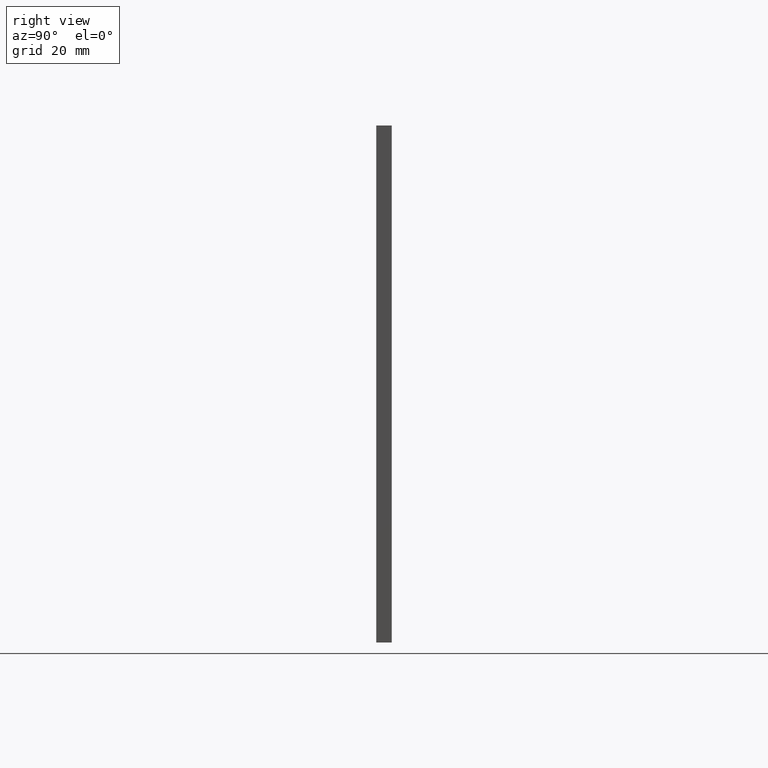
[diagram: clean part render]
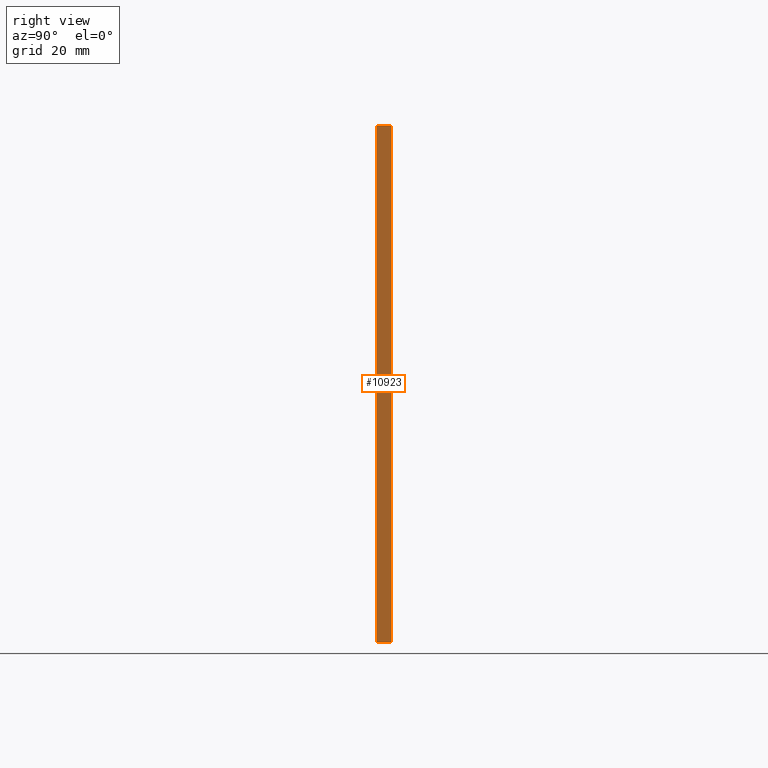
[diagram: same view with one face highlighted and labeled with its STEP entity id]
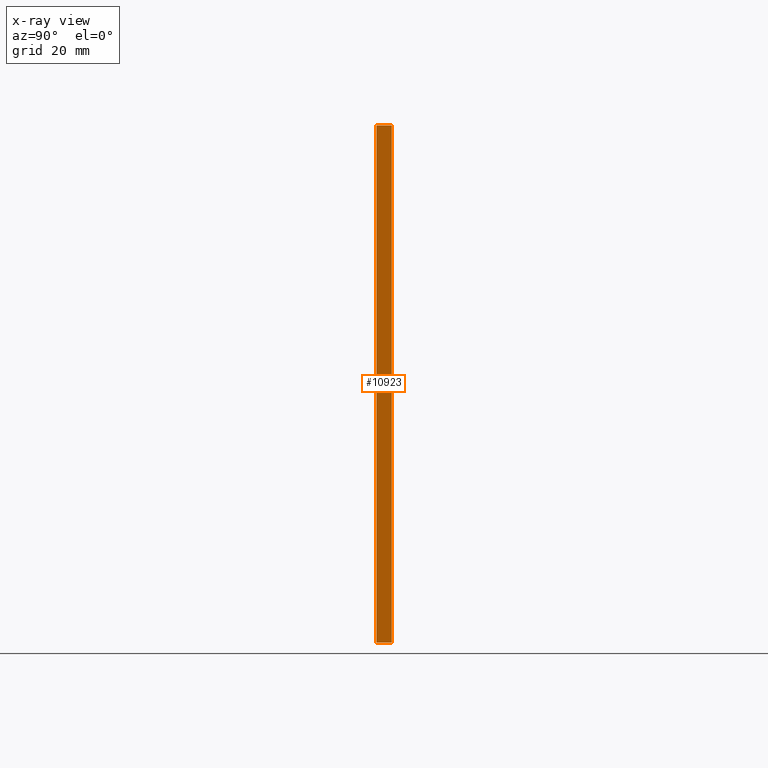
[diagram: x-ray of the same camera — body ghosted, the highlighted face saturated]
A machine part, right view. The second image highlights one B-rep face of the part: STEP entity #10923.
The next image is the same camera in x-ray: the body ghosted, the highlighted face saturated — about 0% of this face is hidden behind the body in this view.
In plain terms, the highlighted planar face has unit normal (-1, 0, 0).
Its self-contained STEP definition (entity closure, byte-faithful):
#1555 = ORIENTED_EDGE ( 'NONE', *, *, #4663, .T. ) ;
#2805 = ORIENTED_EDGE ( 'NONE', *, *, #7959, .F. ) ;
#2980 = DIRECTION ( 'NONE',  ( -0.000000000000000000, -1.000000000000000000, -0.000000000000000000 ) ) ;
#3070 = LINE ( 'NONE', #10676, #6234 ) ;
#3114 = ORIENTED_EDGE ( 'NONE', *, *, #13432, .F. ) ;
#3168 = CARTESIAN_POINT ( 'NONE',  ( 49.99999999999997158, 1.500000000000000000, -50.00000000000000711 ) ) ;
#3354 = EDGE_CURVE ( 'NONE', #3384, #4372, #16464, .T. ) ;
#3384 = VERTEX_POINT ( 'NONE', #11429 ) ;
#3785 = CARTESIAN_POINT ( 'NONE',  ( 49.99999999999997158, 1.500000000000000000, -50.00000000000000711 ) ) ;
#3851 = DIRECTION ( 'NONE',  ( 2.081668171172168267E-16, 0.000000000000000000, 1.000000000000000000 ) ) ;
#4156 = FACE_OUTER_BOUND ( 'NONE', #11887, .T. ) ;
#4367 = VERTEX_POINT ( 'NONE', #14652 ) ;
#4372 = VERTEX_POINT ( 'NONE', #4563 ) ;
#4563 = CARTESIAN_POINT ( 'NONE',  ( 49.99999999999999289, -1.500000000000000000, 49.99999999999999289 ) ) ;
#4663 = EDGE_CURVE ( 'NONE', #4372, #5969, #3070, .T. ) ;
#5466 = CARTESIAN_POINT ( 'NONE',  ( 49.99999999999999289, 1.500000000000000000, 49.99999999999999289 ) ) ;
#5969 = VERTEX_POINT ( 'NONE', #15148 ) ;
#6234 = VECTOR ( 'NONE', #13258, 1000.000000000000000 ) ;
#7959 = EDGE_CURVE ( 'NONE', #3384, #4367, #14197, .T. ) ;
#8417 = CARTESIAN_POINT ( 'NONE',  ( 49.99999999999997158, 1.500000000000000000, -50.00000000000000711 ) ) ;
#9115 = VECTOR ( 'NONE', #16047, 1000.000000000000000 ) ;
#9591 = VECTOR ( 'NONE', #15935, 1000.000000000000000 ) ;
#9667 = VECTOR ( 'NONE', #2980, 1000.000000000000000 ) ;
#10676 = CARTESIAN_POINT ( 'NONE',  ( 49.99999999999997158, -1.500000000000000000, -50.00000000000000711 ) ) ;
#10923 = ADVANCED_FACE ( 'NONE', ( #4156 ), #15215, .F. ) ;
#11429 = CARTESIAN_POINT ( 'NONE',  ( 49.99999999999999289, 1.500000000000000000, 49.99999999999999289 ) ) ;
#11514 = DIRECTION ( 'NONE',  ( -1.000000000000000000, 0.000000000000000000, 2.081668171172168267E-16 ) ) ;
#11887 = EDGE_LOOP ( 'NONE', ( #1555, #3114, #2805, #12364 ) ) ;
#11916 = LINE ( 'NONE', #8417, #9115 ) ;
#12364 = ORIENTED_EDGE ( 'NONE', *, *, #3354, .T. ) ;
#13258 = DIRECTION ( 'NONE',  ( -2.081668171172168513E-16, -0.000000000000000000, -1.000000000000000000 ) ) ;
#13432 = EDGE_CURVE ( 'NONE', #4367, #5969, #11916, .T. ) ;
#14197 = LINE ( 'NONE', #3168, #9591 ) ;
#14652 = CARTESIAN_POINT ( 'NONE',  ( 49.99999999999997158, 1.500000000000000000, -50.00000000000000711 ) ) ;
#15148 = CARTESIAN_POINT ( 'NONE',  ( 49.99999999999997158, -1.500000000000000000, -50.00000000000000711 ) ) ;
#15215 = PLANE ( 'NONE',  #15555 ) ;
#15555 = AXIS2_PLACEMENT_3D ( 'NONE', #3785, #11514, #3851 ) ;
#15935 = DIRECTION ( 'NONE',  ( -2.081668171172168513E-16, -0.000000000000000000, -1.000000000000000000 ) ) ;
#16047 = DIRECTION ( 'NONE',  ( -0.000000000000000000, -1.000000000000000000, -0.000000000000000000 ) ) ;
#16464 = LINE ( 'NONE', #5466, #9667 ) ;